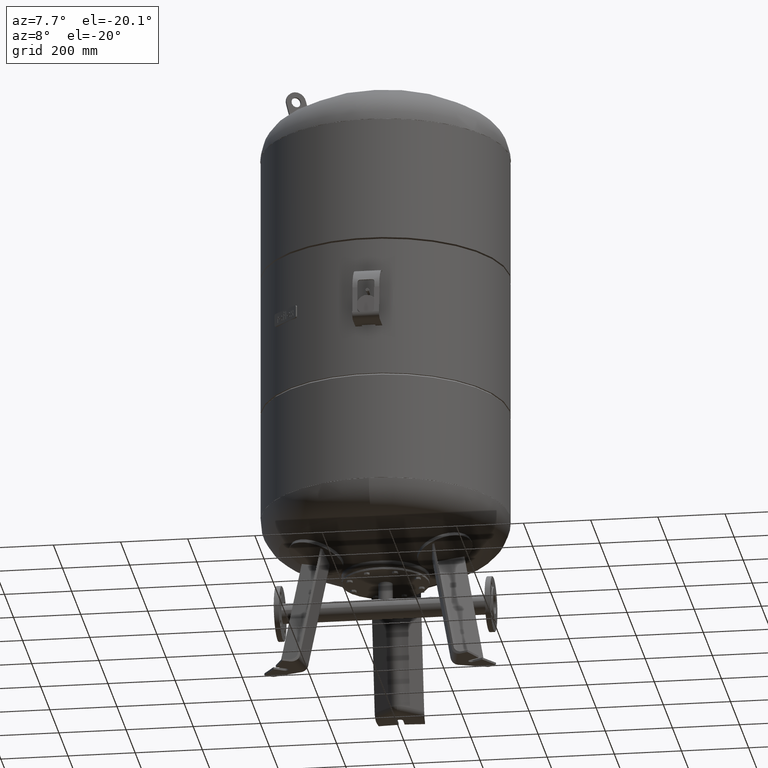
[diagram: clean part render]
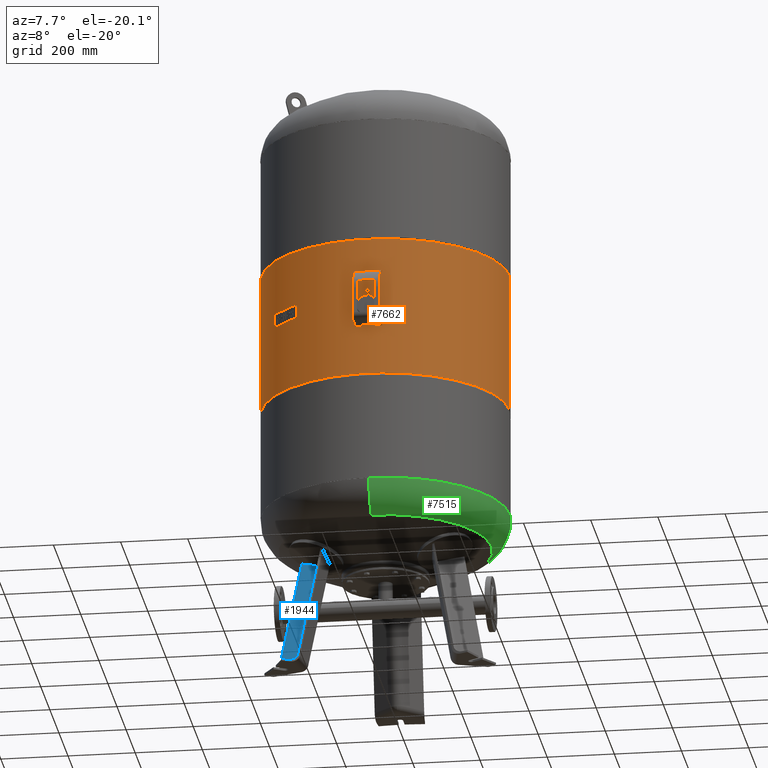
[diagram: same view with three faces highlighted in distinct colors, each labeled with its STEP entity id]
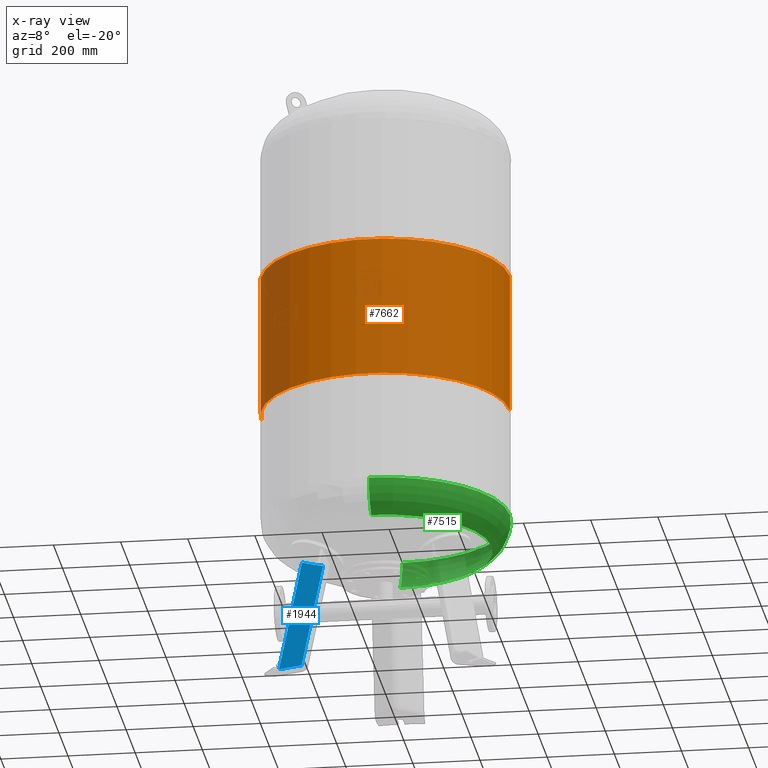
[diagram: x-ray of the same camera — body ghosted, the three highlighted faces saturated]
A machine part, auxiliary view with three faces highlighted in distinct colors.
The next image is the same camera in x-ray (body ghosted, the three faces saturated) — at least one of them is partly hidden behind the body in this view.
Their STEP definitions:

[orange] entity #7662 — the highlighted cylindrical surface (partial cylindrical patch) has radius 370 mm, axis along (0, 0, 1).
#7621=CARTESIAN_POINT('',(-7.289513E-016,0.0,1052.885609846773600));
#7622=DIRECTION('',(2.961484E-017,0.0,1.0));
#7623=DIRECTION('',(1.0,0.0,0.0));
#7624=AXIS2_PLACEMENT_3D('',#7621,#7622,#7623);
#7625=CYLINDRICAL_SURFACE('',#7624,370.000000000001140);
#7626=CARTESIAN_POINT('',(369.999999999999720,0.0,1263.666666666666500));
#7627=VERTEX_POINT('',#7626);
#7628=CARTESIAN_POINT('',(370.000000000002610,0.0,842.104553026880580));
#7629=VERTEX_POINT('',#7628);
#7630=CARTESIAN_POINT('',(369.999999999999720,0.0,1263.666666666666500));
#7631=DIRECTION('',(0.0,0.0,-1.0));
#7632=VECTOR('',#7631,421.562113639785930);
#7633=LINE('',#7630,#7632);
#7634=EDGE_CURVE('',#7627,#7629,#7633,.T.);
#7635=ORIENTED_EDGE('',*,*,#7634,.F.);
#7636=CARTESIAN_POINT('',(-370.000000000001140,-4.531044E-014,1263.666666666666500));
#7637=VERTEX_POINT('',#7636);
#7638=CARTESIAN_POINT('',(5.513297E-015,0.0,1263.666666666666500));
#7639=DIRECTION('',(0.0,0.0,1.0));
#7640=DIRECTION('',(1.0,0.0,0.0));
#7641=AXIS2_PLACEMENT_3D('',#7638,#7639,#7640);
#7642=CIRCLE('',#7641,369.999999999999720);
#7643=EDGE_CURVE('',#7637,#7627,#7642,.T.);
#7644=ORIENTED_EDGE('',*,*,#7643,.F.);
#7645=CARTESIAN_POINT('',(-370.000000000001140,-4.531044E-014,842.104553026880470));
#7646=VERTEX_POINT('',#7645);
#7647=CARTESIAN_POINT('',(-370.000000000001140,-4.531044E-014,1263.666666666666500));
#7648=DIRECTION('',(0.0,0.0,-1.0));
#7649=VECTOR('',#7648,421.562113639786050);
#7650=LINE('',#7647,#7649);
#7651=EDGE_CURVE('',#7637,#7646,#7650,.T.);
#7652=ORIENTED_EDGE('',*,*,#7651,.T.);
#7653=CARTESIAN_POINT('',(-6.971199E-015,0.0,842.104553026880470));
#7654=DIRECTION('',(0.0,0.0,1.0));
#7655=DIRECTION('',(1.0,0.0,0.0));
#7656=AXIS2_PLACEMENT_3D('',#7653,#7654,#7655);
#7657=CIRCLE('',#7656,370.000000000002610);
#7658=EDGE_CURVE('',#7646,#7629,#7657,.T.);
#7659=ORIENTED_EDGE('',*,*,#7658,.T.);
#7660=EDGE_LOOP('',(#7635,#7644,#7652,#7659));
#7661=FACE_OUTER_BOUND('',#7660,.T.);
#7662=ADVANCED_FACE('',(#7661),#7625,.T.);

[blue] entity #1944 — the highlighted planar face has unit normal (-0.3243, -0.9325, 0.1588).
#1139=CARTESIAN_POINT('',(-234.208860074676070,-116.587779953756780,27.029948423057292));
#1140=VERTEX_POINT('',#1139);
#1212=CARTESIAN_POINT('',(-174.964894062055720,-82.383260228509428,348.869175182353330));
#1213=VERTEX_POINT('',#1212);
#1294=CARTESIAN_POINT('',(-241.377997885815260,-55.253728775100939,372.562952014676110));
#1295=VERTEX_POINT('',#1294);
#1303=CARTESIAN_POINT('',(-174.964894062055720,-82.383260228509428,348.869175182353330));
#1304=CARTESIAN_POINT('',(-176.981983461321680,-81.578804624385469,349.474179354457020));
#1305=CARTESIAN_POINT('',(-178.999738907126810,-80.772078679025256,350.091155577606000));
#1306=CARTESIAN_POINT('',(-187.828305682259330,-77.233956594289552,352.839681936076030));
#1307=CARTESIAN_POINT('',(-194.645794721043960,-74.480237449833652,355.088683497572050));
#1308=CARTESIAN_POINT('',(-214.786380419185150,-66.287684017357094,362.069703598062690));
#1309=CARTESIAN_POINT('',(-228.112303617601920,-60.793190615536730,367.122797962066270));
#1310=CARTESIAN_POINT('',(-241.377997885815260,-55.253728775100939,372.562952014676110));
#1311=B_SPLINE_CURVE_WITH_KNOTS('',3,(#1303,#1304,#1305,#1306,#1307,#1308,#1309,#1310),.UNSPECIFIED.,.F.,.U.,(4,2,2,4),(5.937335443723129,6.588195328792665,8.784260438390220,13.073486937020286),.UNSPECIFIED.);
#1312=EDGE_CURVE('',#1213,#1295,#1311,.T.);
#1596=CARTESIAN_POINT('',(-304.983499698466010,-91.976382368575983,27.029948423057292));
#1597=VERTEX_POINT('',#1596);
#1598=CARTESIAN_POINT('',(-234.208860074676070,-116.587779953756780,27.029948423057292));
#1599=DIRECTION('',(-0.944521094592691,0.328450760190054,0.0));
#1600=VECTOR('',#1599,74.931772333057623);
#1601=LINE('',#1598,#1600);
#1602=EDGE_CURVE('',#1140,#1597,#1601,.T.);
#1917=CARTESIAN_POINT('',(-174.964894062055720,-82.383260228509428,348.869175182353330));
#1918=DIRECTION('',(-0.180056805991956,-0.103955845408880,-0.978147600733805));
#1919=VECTOR('',#1918,329.029306535999810);
#1920=LINE('',#1917,#1919);
#1921=EDGE_CURVE('',#1213,#1140,#1920,.T.);
#1928=CARTESIAN_POINT('',(-231.511688463168300,-133.663335654754970,-67.735293817669458));
#1929=DIRECTION('',(-0.324282864533178,-0.932535537409926,0.158802063077708));
#1930=DIRECTION('',(0.180056805991956,0.103955845408880,0.978147600733806));
#1931=AXIS2_PLACEMENT_3D('',#1928,#1929,#1930);
#1932=PLANE('',#1931);
#1933=ORIENTED_EDGE('',*,*,#1921,.F.);
#1934=ORIENTED_EDGE('',*,*,#1312,.T.);
#1935=CARTESIAN_POINT('',(-304.983499698466010,-91.976382368575983,27.029948423057292));
#1936=DIRECTION('',(0.180056805991956,0.103955845408880,0.978147600733805));
#1937=VECTOR('',#1936,353.252416437355920);
#1938=LINE('',#1935,#1937);
#1939=EDGE_CURVE('',#1597,#1295,#1938,.T.);
#1940=ORIENTED_EDGE('',*,*,#1939,.F.);
#1941=ORIENTED_EDGE('',*,*,#1602,.F.);
#1942=EDGE_LOOP('',(#1933,#1934,#1940,#1941));
#1943=FACE_OUTER_BOUND('',#1942,.T.);
#1944=ADVANCED_FACE('',(#1943),#1932,.T.);

[green] entity #7515 — the highlighted toroidal blend (fillet) surface has major radius 254.5 mm and minor (blend) radius 115.5 mm.
#7401=CARTESIAN_POINT('',(370.0,1.062956E-014,513.793879611869560));
#7402=VERTEX_POINT('',#7401);
#7409=CARTESIAN_POINT('',(-4.531044E-014,369.999999999999940,513.793879611869780));
#7410=VERTEX_POINT('',#7409);
#7411=CARTESIAN_POINT('',(0.0,-3.468087E-014,513.793879611869560));
#7412=DIRECTION('',(0.0,0.0,1.0));
#7413=DIRECTION('',(-1.0,0.0,0.0));
#7414=AXIS2_PLACEMENT_3D('',#7411,#7412,#7413);
#7415=CIRCLE('',#7414,370.0);
#7416=EDGE_CURVE('',#7402,#7410,#7415,.T.);
#7433=CARTESIAN_POINT('',(0.0,-370.000000000000060,513.793879611869330));
#7434=VERTEX_POINT('',#7433);
#7435=CARTESIAN_POINT('',(0.0,-315.931034482758610,415.985505725079460));
#7436=VERTEX_POINT('',#7435);
#7437=CARTESIAN_POINT('',(0.0,-254.500000000000060,513.793879611869440));
#7438=DIRECTION('',(1.0,0.0,0.0));
#7439=DIRECTION('',(0.0,-1.0,0.0));
#7440=AXIS2_PLACEMENT_3D('',#7437,#7438,#7439);
#7441=CIRCLE('',#7440,115.500000000000000);
#7442=EDGE_CURVE('',#7434,#7436,#7441,.T.);
#7452=CARTESIAN_POINT('',(-3.868912E-014,315.931034482758610,415.985505725079580));
#7453=VERTEX_POINT('',#7452);
#7454=CARTESIAN_POINT('',(-3.116623E-014,254.500000000000000,513.793879611869670));
#7455=DIRECTION('',(-1.0,0.0,0.0));
#7456=DIRECTION('',(0.0,1.0,0.0));
#7457=AXIS2_PLACEMENT_3D('',#7454,#7455,#7456);
#7458=CIRCLE('',#7457,115.500000000000000);
#7459=EDGE_CURVE('',#7410,#7453,#7458,.T.);
#7487=CARTESIAN_POINT('',(0.0,-1.671377E-014,415.985505725079520));
#7488=DIRECTION('',(0.0,0.0,1.0));
#7489=DIRECTION('',(-1.0,0.0,0.0));
#7490=AXIS2_PLACEMENT_3D('',#7487,#7488,#7489);
#7491=CIRCLE('',#7490,315.931034482758610);
#7492=EDGE_CURVE('',#7436,#7453,#7491,.T.);
#7497=CARTESIAN_POINT('',(0.0,-3.468087E-014,513.793879611869560));
#7498=DIRECTION('',(0.0,-1.836970E-016,1.0));
#7499=DIRECTION('',(0.0,-1.0,0.0));
#7500=AXIS2_PLACEMENT_3D('',#7497,#7498,#7499);
#7501=TOROIDAL_SURFACE('',#7500,254.500000000000030,115.500000000000000);
#7502=ORIENTED_EDGE('',*,*,#7442,.T.);
#7503=ORIENTED_EDGE('',*,*,#7492,.T.);
#7504=ORIENTED_EDGE('',*,*,#7459,.F.);
#7505=ORIENTED_EDGE('',*,*,#7416,.F.);
#7506=CARTESIAN_POINT('',(0.0,-3.468087E-014,513.793879611869560));
#7507=DIRECTION('',(0.0,0.0,1.0));
#7508=DIRECTION('',(-1.0,0.0,0.0));
#7509=AXIS2_PLACEMENT_3D('',#7506,#7507,#7508);
#7510=CIRCLE('',#7509,370.0);
#7511=EDGE_CURVE('',#7434,#7402,#7510,.T.);
#7512=ORIENTED_EDGE('',*,*,#7511,.F.);
#7513=EDGE_LOOP('',(#7502,#7503,#7504,#7505,#7512));
#7514=FACE_OUTER_BOUND('',#7513,.T.);
#7515=ADVANCED_FACE('',(#7514),#7501,.T.);